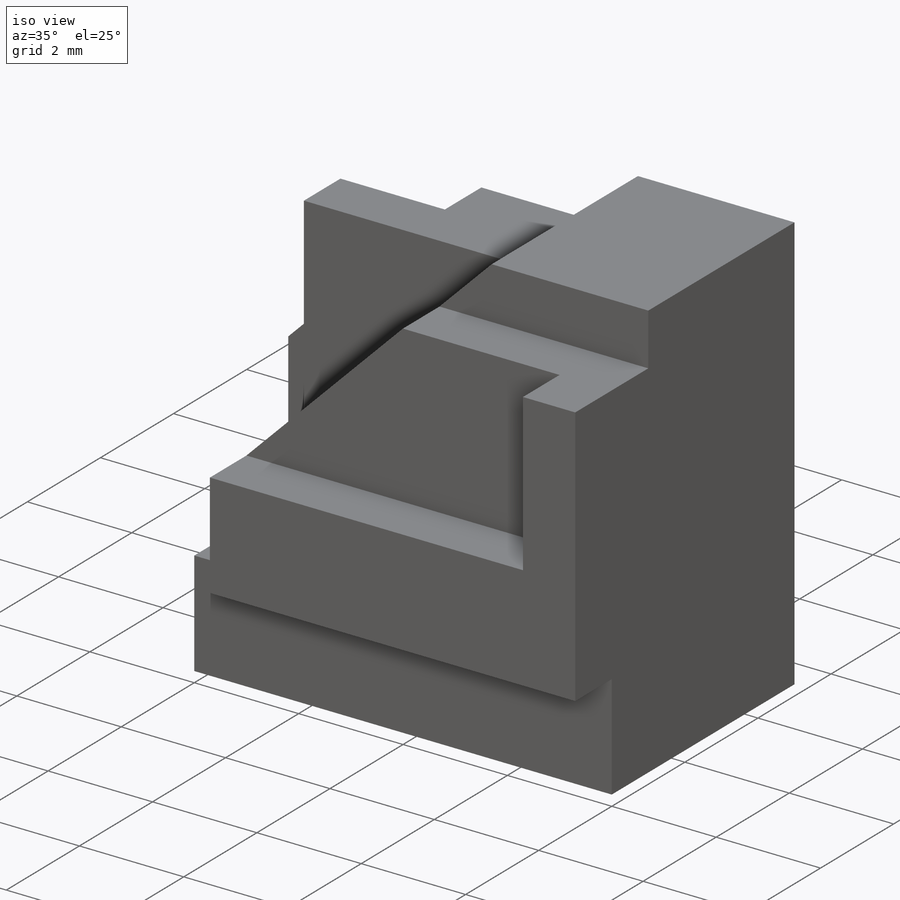
[diagram: iso view]
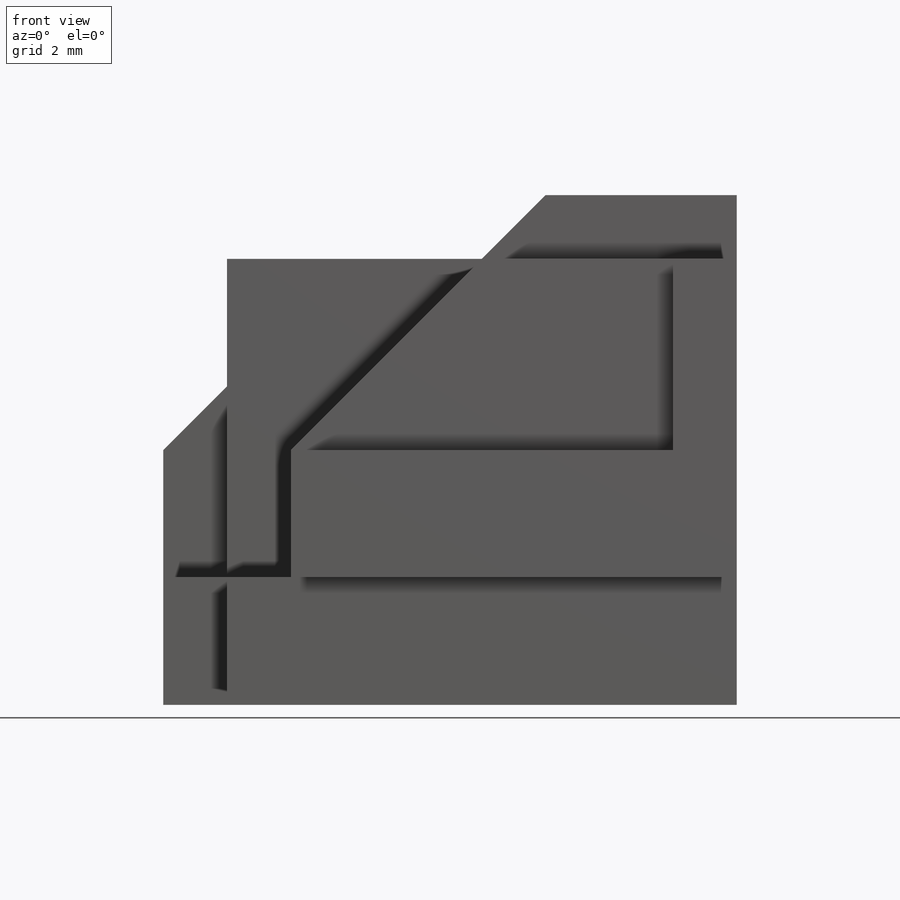
[diagram: front view]
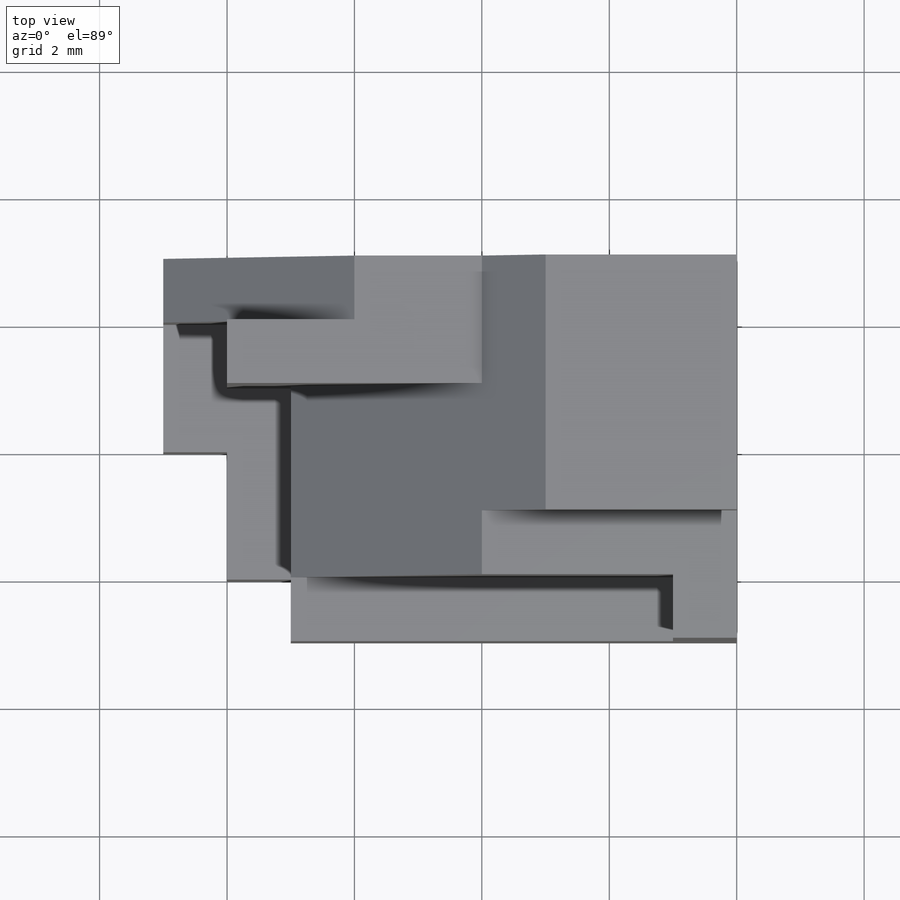
[diagram: top view]
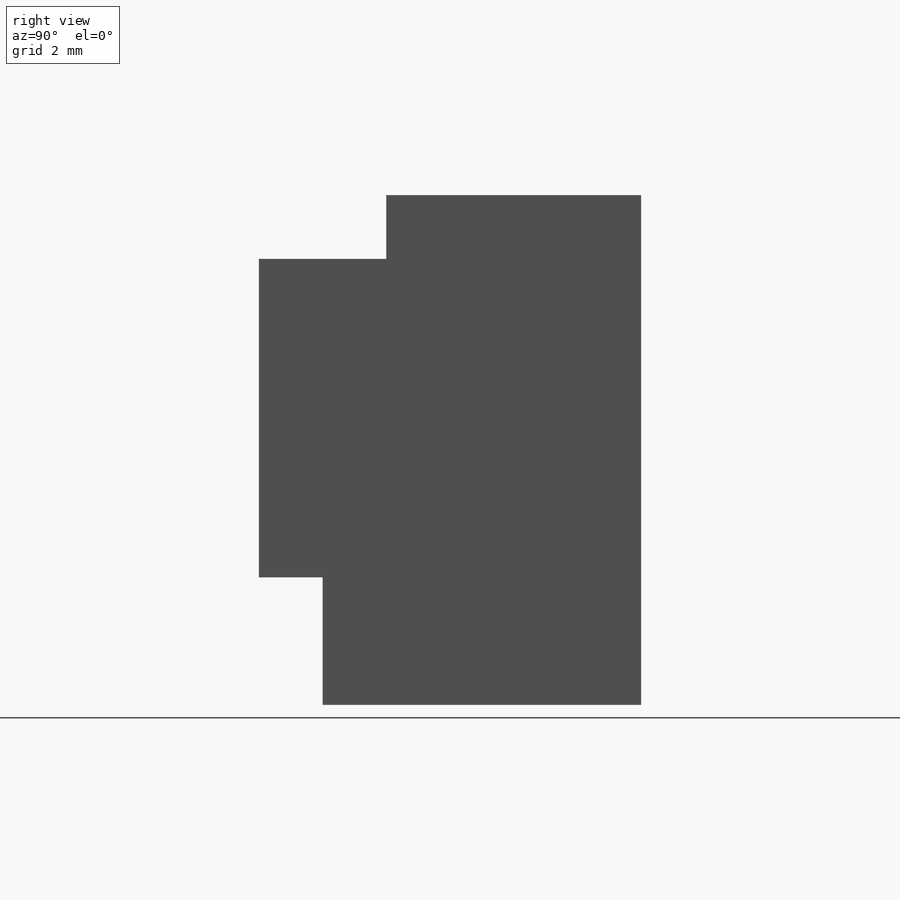
[diagram: right view]
SOLIDWORKS PART (.sldprt)
format: sldprt  version: not decoded by parser v0  size: 281,600 bytes
history: native  units: mm
features: sketch x12, cut_extrude x10, extrude x2, material x1 (+13 scaffold rows collapsed)
feature tree (38):
  scaffold x13  (default folders/planes/origin — collapsed)
  material  "Material <not specified>"
  sketch  "Sketch1"  dims[D1=6.0mm D2=8.0mm]
  extrude  "Boss-Extrude1"  Depth=8mm
  sketch  "Sketch2"  dims[D1=1.0mm D2=2.0mm]
  cut_extrude  "Cut-Extrude1"  [1 undecoded]
  sketch  "Sketch3"  dims[D1=4.0mm D2=1.0mm]
  cut_extrude  "Cut-Extrude2"  Depth=1mm
  sketch  "Sketch4"  dims[D1=3.0mm D2=1.0mm]
  cut_extrude  "Cut-Extrude3"  Depth=2mm
  sketch  "Sketch5"  dims[c1.D1=2.0mm c1.D2=3.0mm c2.D1=4.0mm]
  cut_extrude  "Cut-Extrude4"  Depth=3mm
  sketch  "Sketch8"
  cut_extrude  "Cut-Extrude7"  Depth=1mm
  sketch  "Sketch9"  dims[D1=1.0mm]
  cut_extrude  "Cut-Extrude8"  [1 undecoded]
  sketch  "Sketch10"  dims[D1=1.0mm D2=2.0mm]
  cut_extrude  "Cut-Extrude9"  Depth=1mm
  sketch  "Sketch14"
  cut_extrude  "Cut-Extrude12"  Depth=1mm
  sketch  "Sketch15"
  extrude  "Boss-Extrude2"  Depth=1mm
  sketch  "Sketch16"  dims[D1=1.0mm]
  cut_extrude  "Cut-Extrude13"  Depth=5mm
  sketch  "Sketch17"  dims[D1=3.0mm]
  cut_extrude  "Cut-Extrude14"  Depth=1mm
decode coverage: 19 of 24 modeling features carry decoded parameters
note: 2 parameter values undecoded
note: suppression state not decoded; provenance and decode notes live in map.json
